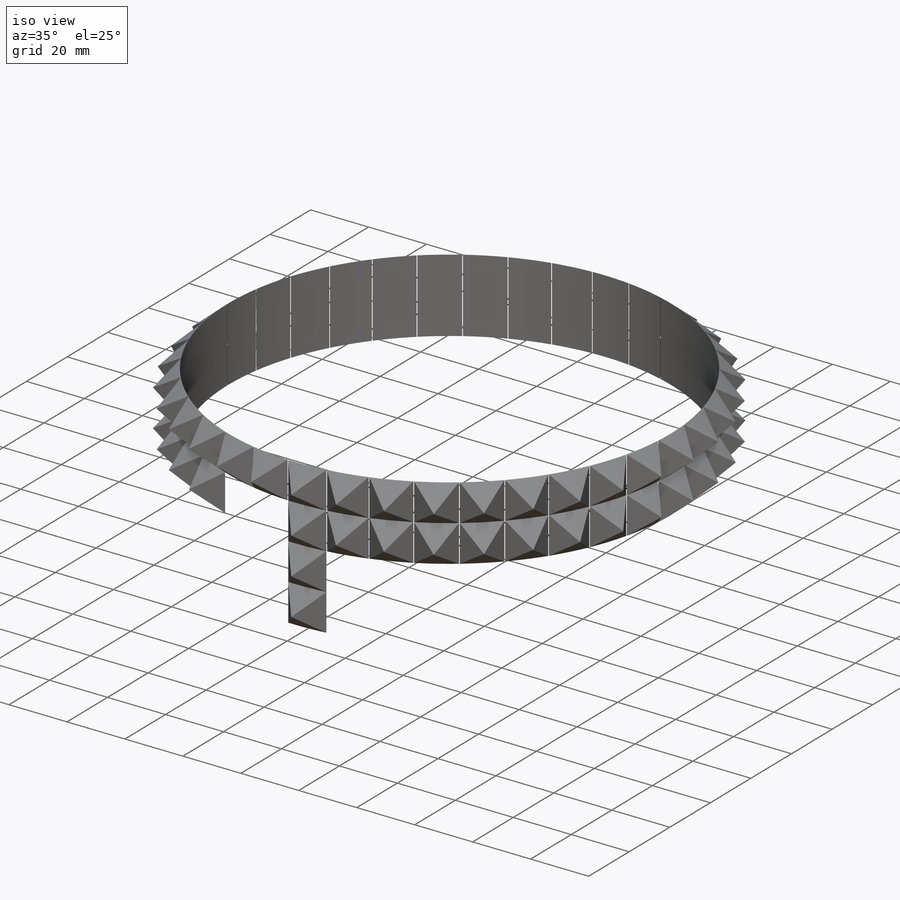
[diagram: iso view]
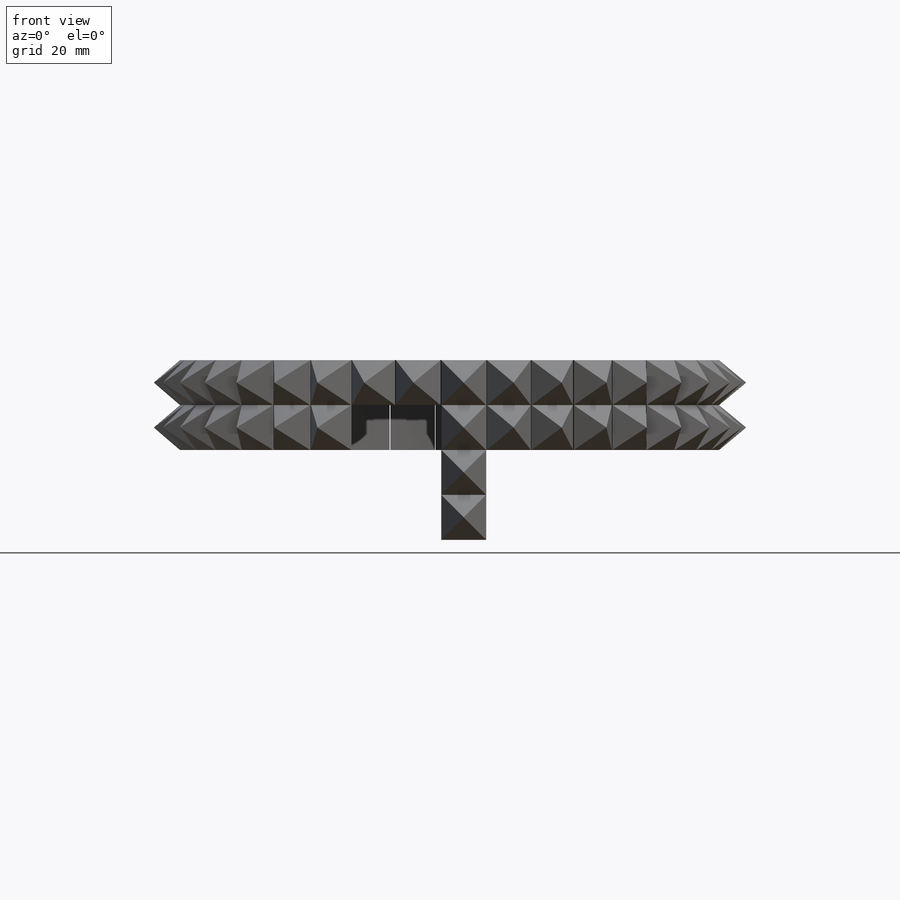
[diagram: front view]
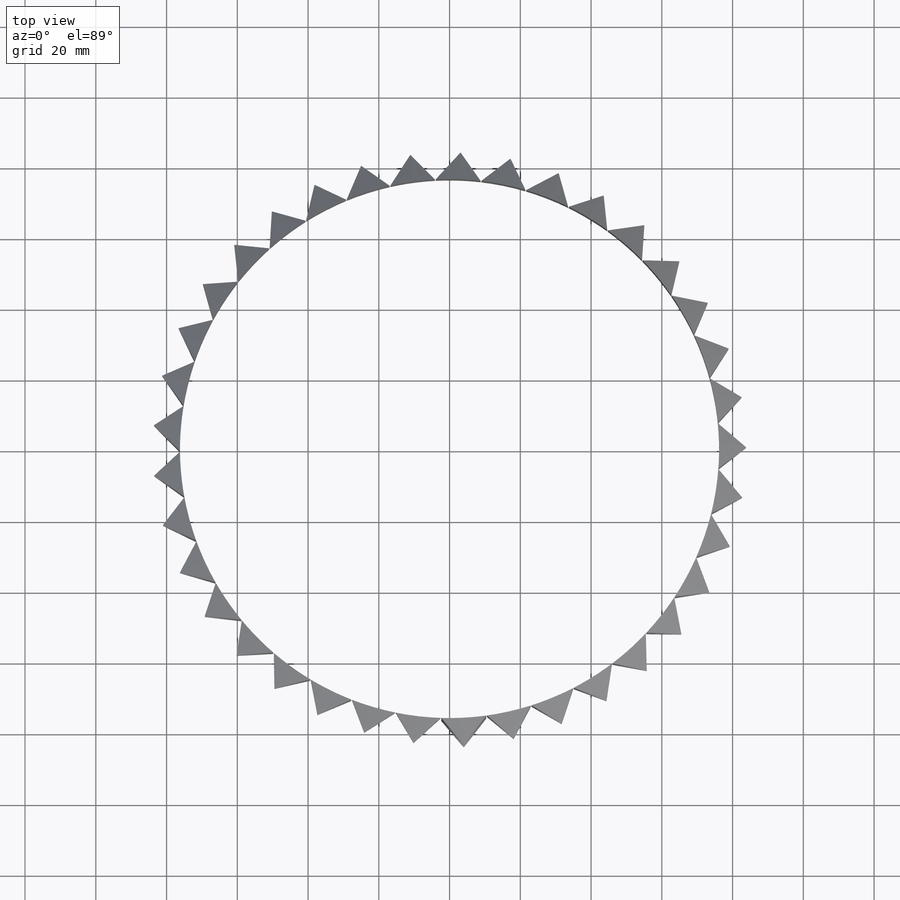
[diagram: top view]
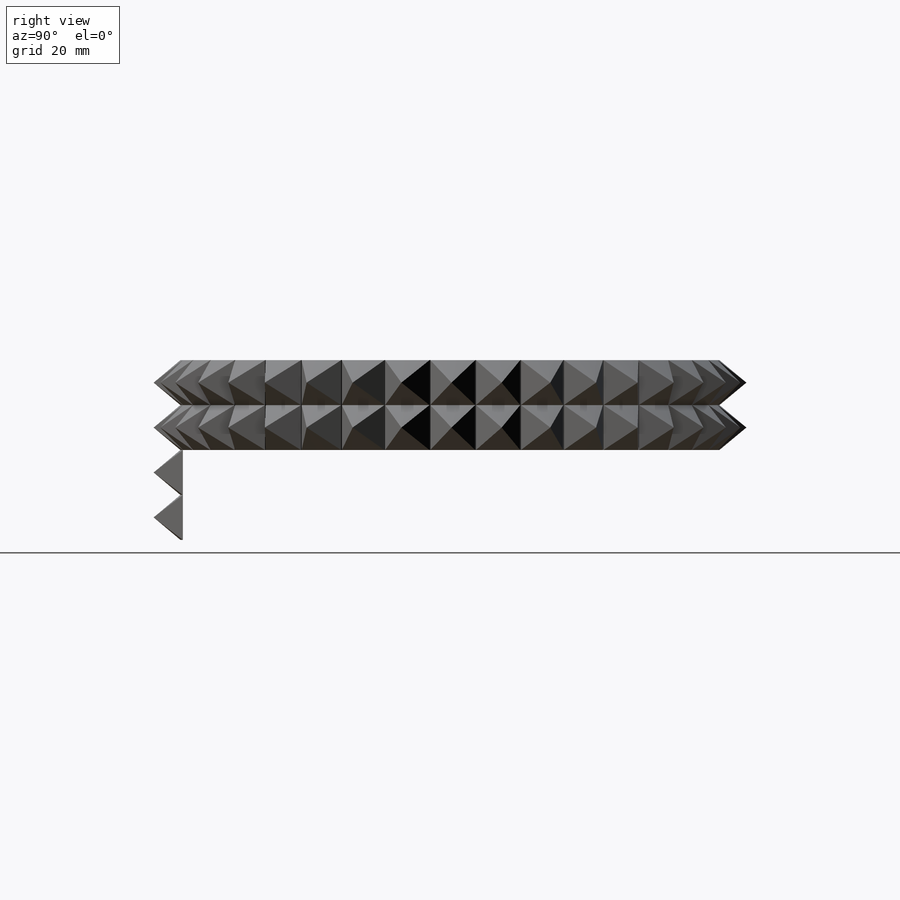
[diagram: right view]
SOLIDWORKS PART (.sldprt)
format: sldprt  version: not decoded by parser v0  size: 3,062,272 bytes
history: native  units: mm
features: sketch x4, material x1, surface_op x1, plane x1, pattern_linear x1, pattern_circular x1 (+11 scaffold rows collapsed)
feature tree (20):
  scaffold x11  (default folders/planes/origin — collapsed)
  material  "Mild Steel A36"
  sketch  "Sketch1"  dims[D1=152.4mm]
  surface_op  "Surface-Extrude1"
  sketch  "Sketch2"  dims[D1=12.7mm]
  sketch  "3DSketch2"  dims[D1=7.9375mm]
  plane  "Plane2"
  sketch  "Sketch4"
  pattern_linear  "LPattern3"  Count1=4 Count2=1 Spacing1=12.7mm Spacing2=3.175mm
  pattern_circular  "CirPattern2"  Count=37 Angle=360deg
decode coverage: 5 of 7 modeling features carry decoded parameters
note: suppression state not decoded; provenance and decode notes live in map.json
